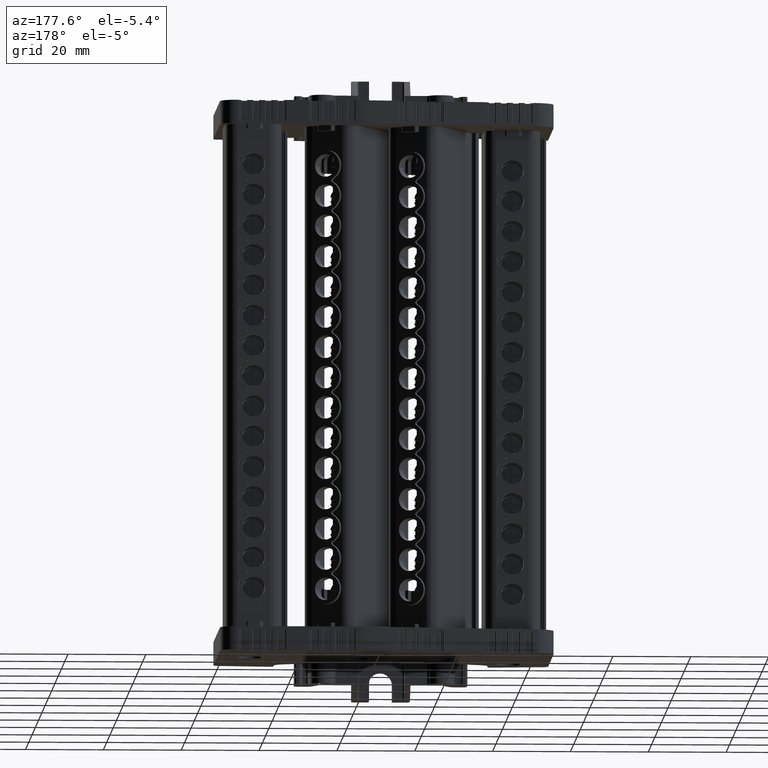
[diagram: clean part render]
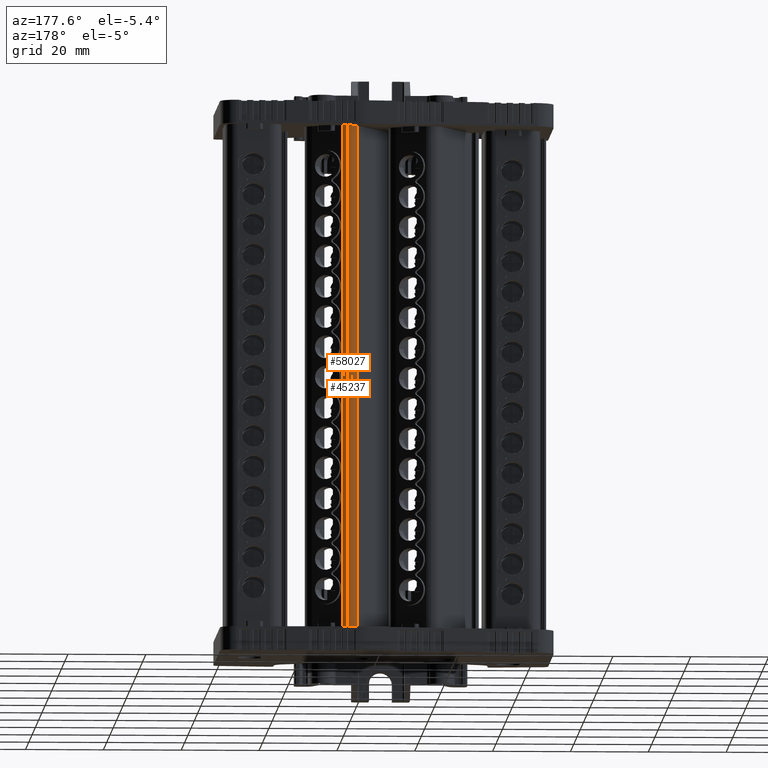
[diagram: same view with one multi-face feature highlighted, each face labeled with its STEP entity id]
A machine part, auxiliary view. The highlighted faces form ONE feature: a constant-radius fillet chain: 2 tangent blend faces with common blend radius 2.9989 mm. The faces share edges in the B-rep.
Their STEP definitions:
[1] entity #45237 (Cylinder):
#20476 = EDGE_LOOP ( 'NONE', ( #55678, #55755, #55711, #55738 ) ) ;
#26314 = VERTEX_POINT ( 'NONE', #75275 ) ;
#26318 = VERTEX_POINT ( 'NONE', #75291 ) ;
#26333 = VERTEX_POINT ( 'NONE', #75261 ) ;
#26453 = VERTEX_POINT ( 'NONE', #73707 ) ;
#45237 = ADVANCED_FACE ( 'NONE', ( #94970 ), #95044, .T. ) ;
#46655 = DIRECTION ( 'NONE',  ( -2.670878784694735100E-014, -7.311159212060596000E-014, -1.000000000000000000 ) ) ;
#46659 = DIRECTION ( 'NONE',  ( 0.0000000000000000000, 1.000000000000000000, -7.404291487316913200E-014 ) ) ;
#46660 = CARTESIAN_POINT ( 'NONE',  ( 400.8035341189121800, -75.48564567328155300, 2.304312546187178100 ) ) ;
#46664 = DIRECTION ( 'NONE',  ( 2.670878784694735100E-014, 7.311159212060596000E-014, 1.000000000000000000 ) ) ;
#46673 = DIRECTION ( 'NONE',  ( 0.0000000000000000000, 1.000000000000000000, -7.404291487316913200E-014 ) ) ;
#46683 = CARTESIAN_POINT ( 'NONE',  ( 403.4988949007101800, -76.80026096451850000, -33.40539199998765700 ) ) ;
#46691 = LINE ( 'NONE', #46660, #125522 ) ;
#46724 = CARTESIAN_POINT ( 'NONE',  ( 403.4988949007135900, -76.80026096450902200, 96.29460800001193400 ) ) ;
#46726 = DIRECTION ( 'NONE',  ( -2.670878784694735100E-014, -7.311159212060596000E-014, -1.000000000000000000 ) ) ;
#46775 = LINE ( 'NONE', #46826, #125606 ) ;
#46815 = DIRECTION ( 'NONE',  ( -2.670878784694735100E-014, -7.311159212060596000E-014, -1.000000000000000000 ) ) ;
#46826 = CARTESIAN_POINT ( 'NONE',  ( 403.4988949007110900, -73.80139732840189000, 2.304312546186983100 ) ) ;
#55678 = ORIENTED_EDGE ( 'NONE', *, *, #88291, .T. ) ;
#55711 = ORIENTED_EDGE ( 'NONE', *, *, #88286, .F. ) ;
#55738 = ORIENTED_EDGE ( 'NONE', *, *, #88292, .T. ) ;
#55755 = ORIENTED_EDGE ( 'NONE', *, *, #88305, .T. ) ;
#73707 = CARTESIAN_POINT ( 'NONE',  ( 400.8035341189154200, -75.48564567327321100, 96.29460800001190500 ) ) ;
#75261 = CARTESIAN_POINT ( 'NONE',  ( 403.4988949007118900, -73.80139732839502600, 96.29460800001172100 ) ) ;
#75275 = CARTESIAN_POINT ( 'NONE',  ( 400.8035341189119500, -75.48564567328269000, -33.40539199998778500 ) ) ;
#75291 = CARTESIAN_POINT ( 'NONE',  ( 403.4988949007118900, -73.80139732840450500, -33.40539199998787700 ) ) ;
#88286 = EDGE_CURVE ( 'NONE', #26314, #26318, #125624, .T. ) ;
#88291 = EDGE_CURVE ( 'NONE', #26453, #26333, #125586, .T. ) ;
#88292 = EDGE_CURVE ( 'NONE', #26314, #26453, #46691, .T. ) ;
#88305 = EDGE_CURVE ( 'NONE', #26333, #26318, #46775, .T. ) ;
#94668 = AXIS2_PLACEMENT_3D ( 'NONE', #94994, #94979, #94983 ) ;
#94970 = FACE_OUTER_BOUND ( 'NONE', #20476, .T. ) ;
#94979 = DIRECTION ( 'NONE',  ( -2.670878784694735100E-014, -7.311159212060596000E-014, -1.000000000000000000 ) ) ;
#94983 = DIRECTION ( 'NONE',  ( 0.0000000000000000000, 1.000000000000000000, -7.317522446449918500E-014 ) ) ;
#94994 = CARTESIAN_POINT ( 'NONE',  ( 403.4988949007110900, -76.80026096451590000, 2.304312546187202500 ) ) ;
#95044 = CYLINDRICAL_SURFACE ( 'NONE', #94668, 2.998863636113999300 ) ;
#125522 = VECTOR ( 'NONE', #46664, 1000.000000000000000 ) ;
#125558 = AXIS2_PLACEMENT_3D ( 'NONE', #46683, #46655, #46673 ) ;
#125566 = AXIS2_PLACEMENT_3D ( 'NONE', #46724, #46726, #46659 ) ;
#125586 = CIRCLE ( 'NONE', #125566, 2.998863636113999300 ) ;
#125606 = VECTOR ( 'NONE', #46815, 1000.000000000000000 ) ;
#125624 = CIRCLE ( 'NONE', #125558, 2.998863636113999300 ) ;
[2] entity #58027 (Cylinder):
#1677 = FACE_OUTER_BOUND ( 'NONE', #69796, .T. ) ;
#1723 = CYLINDRICAL_SURFACE ( 'NONE', #135251, 2.998863636113999300 ) ;
#1909 = CARTESIAN_POINT ( 'NONE',  ( 403.4988949007110900, -76.80026096451590000, 2.304312546187202500 ) ) ;
#2040 = DIRECTION ( 'NONE',  ( -2.670878784694735100E-014, -7.311159212060596000E-014, -1.000000000000000000 ) ) ;
#2157 = DIRECTION ( 'NONE',  ( 0.0000000000000000000, 1.000000000000000000, -7.317522446449918500E-014 ) ) ;
#3866 = CARTESIAN_POINT ( 'NONE',  ( 403.4988949007101800, -76.80026096451850000, -33.40539199998765700 ) ) ;
#3873 = DIRECTION ( 'NONE',  ( -2.670878784694735100E-014, -7.311159212060596000E-014, -1.000000000000000000 ) ) ;
#3878 = DIRECTION ( 'NONE',  ( 0.0000000000000000000, 1.000000000000000000, -7.404291487316913200E-014 ) ) ;
#21559 = VERTEX_POINT ( 'NONE', #73160 ) ;
#24186 = AXIS2_PLACEMENT_3D ( 'NONE', #25747, #25777, #25776 ) ;
#24227 = CIRCLE ( 'NONE', #24186, 2.998863636113999300 ) ;
#24837 = CIRCLE ( 'NONE', #24854, 2.998863636113999300 ) ;
#24854 = AXIS2_PLACEMENT_3D ( 'NONE', #3866, #3873, #3878 ) ;
#25747 = CARTESIAN_POINT ( 'NONE',  ( 403.4988949007135900, -76.80026096450902200, 96.29460800001193400 ) ) ;
#25776 = DIRECTION ( 'NONE',  ( 0.0000000000000000000, 1.000000000000000000, -7.404291487316913200E-014 ) ) ;
#25777 = DIRECTION ( 'NONE',  ( -2.670878784694735100E-014, -7.311159212060596000E-014, -1.000000000000000000 ) ) ;
#26318 = VERTEX_POINT ( 'NONE', #75291 ) ;
#26333 = VERTEX_POINT ( 'NONE', #75261 ) ;
#33798 = EDGE_CURVE ( 'NONE', #26333, #21559, #24227, .T. ) ;
#34349 = EDGE_CURVE ( 'NONE', #26318, #59244, #24837, .T. ) ;
#46775 = LINE ( 'NONE', #46826, #125606 ) ;
#46815 = DIRECTION ( 'NONE',  ( -2.670878784694735100E-014, -7.311159212060596000E-014, -1.000000000000000000 ) ) ;
#46826 = CARTESIAN_POINT ( 'NONE',  ( 403.4988949007110900, -73.80139732840189000, 2.304312546186983100 ) ) ;
#48619 = ORIENTED_EDGE ( 'NONE', *, *, #88305, .F. ) ;
#48632 = ORIENTED_EDGE ( 'NONE', *, *, #63567, .F. ) ;
#48650 = ORIENTED_EDGE ( 'NONE', *, *, #34349, .F. ) ;
#48659 = ORIENTED_EDGE ( 'NONE', *, *, #33798, .T. ) ;
#58027 = ADVANCED_FACE ( 'NONE', ( #1677 ), #1723, .T. ) ;
#59244 = VERTEX_POINT ( 'NONE', #97733 ) ;
#63567 = EDGE_CURVE ( 'NONE', #59244, #21559, #116480, .T. ) ;
#69796 = EDGE_LOOP ( 'NONE', ( #48619, #48659, #48632, #48650 ) ) ;
#73160 = CARTESIAN_POINT ( 'NONE',  ( 404.7662694378069000, -74.08236749883685900, 96.29460800001176300 ) ) ;
#75261 = CARTESIAN_POINT ( 'NONE',  ( 403.4988949007118900, -73.80139732839502600, 96.29460800001172100 ) ) ;
#75291 = CARTESIAN_POINT ( 'NONE',  ( 403.4988949007118900, -73.80139732840450500, -33.40539199998787700 ) ) ;
#88305 = EDGE_CURVE ( 'NONE', #26333, #26318, #46775, .T. ) ;
#97733 = CARTESIAN_POINT ( 'NONE',  ( 404.7662694378030900, -74.08236749884613900, -33.40539199998787000 ) ) ;
#106310 = VECTOR ( 'NONE', #116497, 1000.000000000000000 ) ;
#116468 = CARTESIAN_POINT ( 'NONE',  ( 404.7662694378073500, -74.08236749883707300, 95.86885799992634800 ) ) ;
#116480 = LINE ( 'NONE', #116468, #106310 ) ;
#116497 = DIRECTION ( 'NONE',  ( 3.277371941038723600E-014, 7.028346808638694500E-014, 1.000000000000000000 ) ) ;
#125606 = VECTOR ( 'NONE', #46815, 1000.000000000000000 ) ;
#135251 = AXIS2_PLACEMENT_3D ( 'NONE', #1909, #2040, #2157 ) ;